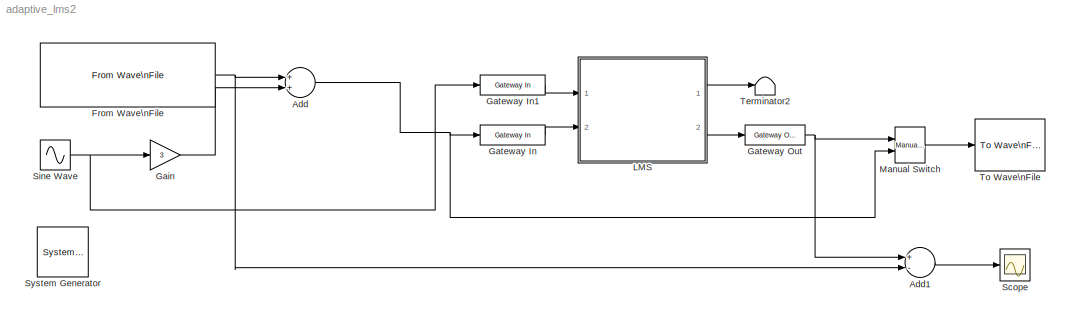
MODEL adaptive_lms2
KIND model
CONFIG StartFcn = tic
CONFIG StopFcn = toc
BLOCK [Reference]  System Generator  REF=xbsIndex_r4/ System Generator
  AttributesFormatString = System\\nGenerator
  FunctionWithSeparateData = off
  Ports = []
  RTWMemSecDataConstants = Inherit from model
  RTWMemSecDataInternal = Inherit from model
  RTWMemSecDataParameters = Inherit from model
  RTWMemSecFuncExecute = Inherit from model
  RTWMemSecFuncInitTerm = Inherit from model
  ShowPortLabels = FromPortIcon
  SourceBlock = xbsIndex_r4/ System Generator
  SourceType = Xilinx System Generator Block
  SystemSampleTime = -1
  Tag = genX
  UserData = DataTag0
  UserDataPersistent = on
  block_type = sysgen
  block_version = 8.2.01
  clock_wrapper = Clock Enables
  core_generation = According to Block Masks
  dbl_ovrd = According to Block Masks
  dcm_input_clock_period = 100
  deprecated_control = off
  directory = ./netlist
  eval_field = 0
  has_advanced_control = 0
  incr_netlist = off
  infoedit = System Generator
  package = ff896
  part = xc2vp30
  run_coregen = off
  sg_blockgui_xml = <!--  *  <copyright redacted>\n <icon width=\"51\" bg_color=\"beige\" height=\"50\" capti...<+2851ch>
  sg_icon_stat = 51,50,-1,-1,red,beige,0,07734
  sg_mask_display = fprintf('','COMMENT: begin icon graphics');\npatch([0 51 51 0 ],[0 0 50 50 ],[0.93 0.92 0.86]);\npatch([12 4 16 4 12 25 29 33 47 36 25 17 29 17 25 36 47 33 29 25 12 ],[5 13 25 37 45 45 41 45 45 34 45 37 25 13 5 16 5 5 9 5 5 ],[0.6 0.2 0.25]);\nplot([0 0 51 51 0 ],[0 50 50 0 0 ]);\nfprintf('','COMMENT: end icon graphics');\nfprintf('','COMMENT: begin icon text');\nfprintf('','COMMENT: end icon text...<+5ch>
  sggui_pos = -1,-1,-1,-1
  simulink_period = 1/48000
  speed = -7
  synthesis_tool = XST
  sysclk_period = 10
  testbench = off
  trim_vbits = Everywhere in SubSystem
  xilinxfamily = Virtex2P
BLOCK [Sum] Add
  CollapseMode = All dimensions
  InputSameDT = off
  OutDataTypeMode = Inherit via internal rule
  OutScaling = 2^-10
  Ports = [2, 1]
  SaturateOnIntegerOverflow = off
BLOCK [Sum] Add1
  CollapseMode = All dimensions
  InputSameDT = off
  Inputs = +-
  OutDataTypeMode = Inherit via internal rule
  OutScaling = 2^-10
  Ports = [2, 1]
  SaturateOnIntegerOverflow = off
BLOCK [Reference] From Wave\nFile  REF=dspwin32/From Wave\nFile
  FileName = Yabu_sample_48_mono
  MinBufSize = 1
  Ports = [0, 1]
  SamplesPerFrame = 1
  SourceBlock = dspwin32/From Wave\nFile
  SourceType = From Wave File
  bLoop = off
  dType = double
  firstSampleOutput = off
  lastSampleOutput = off
  restartMode = immediately after last sample
  timesToPlay = 1
BLOCK [Gain] Gain
  Gain = 3
  OutDataTypeMode = Inherit via internal rule
  ParameterDataTypeMode = Inherit via internal rule
  SaturateOnIntegerOverflow = off
BLOCK [Reference] Gateway In  REF=xbsIndex_r4/Gateway In
  LOCs = {}
  Ports = [1, 1]
  SourceBlock = xbsIndex_r4/Gateway In
  SourceType = Xilinx Gateway In Block
  arith_type = Signed  (2's comp)
  bin_pt = 13
  block_type = gatewayin
  block_version = 8.2.01
  dbl_ovrd = off
  has_advanced_control = 0
  infoedit = Gateway in block.  Converts inputs of type Simulink integer, double and fixed point to  Xilinx fixed point type.<P><P>Hardware notes:  In hardware these blocks become top level input ports.
  locs_specified = off
  n_bits = 16
  overflow = Wrap
  period = 1/48000
  quantization = Truncate
  sg_icon_stat = 65,20,1,1,white,yellow,0,bc55d28f,right
  sg_mask_display = fprintf('','COMMENT: begin icon graphics');\npatch([0 65 65 0 ],[0 0 20 20 ],[0.95 0.93 0.65]);\npatch([27 24 29 24 27 32 33 34 40 36 32 29 34 29 32 36 40 34 33 32 27 ],[2 5 10 15 18 18 17 18 18 14 18 15 10 5 2 6 2 2 3 2 2 ],[0.98 0.96 0.92]);\nplot([0 65 65 0 0 ],[0 0 20 20 0 ]);\nfprintf('','COMMENT: end icon graphics');\nfprintf('','COMMENT: begin icon text');\ncolor('black');port_label('input'...<+131ch>
  sggui_pos = 20,20,356,432
  timing_constraint = None
  xl_area = [0,0,0,0,0,0,0]
  xl_use_area = off
BLOCK [Reference] Gateway In1  REF=xbsIndex_r4/Gateway In
  LOCs = {}
  Ports = [1, 1]
  SourceBlock = xbsIndex_r4/Gateway In
  SourceType = Xilinx Gateway In Block
  arith_type = Signed  (2's comp)
  bin_pt = 13
  block_type = gatewayin
  block_version = 8.2.01
  dbl_ovrd = off
  has_advanced_control = 0
  infoedit = Gateway in block.  Converts inputs of type Simulink integer, double and fixed point to  Xilinx fixed point type.<P><P>Hardware notes:  In hardware these blocks become top level input ports.
  locs_specified = off
  n_bits = 16
  overflow = Wrap
  period = 1/48000
  quantization = Truncate
  sg_icon_stat = 65,20,1,1,white,yellow,0,bc55d28f,right
  sg_mask_display = fprintf('','COMMENT: begin icon graphics');\npatch([0 65 65 0 ],[0 0 20 20 ],[0.95 0.93 0.65]);\npatch([27 24 29 24 27 32 33 34 40 36 32 29 34 29 32 36 40 34 33 32 27 ],[2 5 10 15 18 18 17 18 18 14 18 15 10 5 2 6 2 2 3 2 2 ],[0.98 0.96 0.92]);\nplot([0 65 65 0 0 ],[0 0 20 20 0 ]);\nfprintf('','COMMENT: end icon graphics');\nfprintf('','COMMENT: begin icon text');\ncolor('black');port_label('input'...<+131ch>
  sggui_pos = 20,20,356,432
  timing_constraint = None
  xl_area = [0,0,0,0,0,0,0]
  xl_use_area = off
BLOCK [Reference] Gateway Out  REF=xbsIndex_r4/Gateway Out
  LOCs = {}
  Ports = [1, 1]
  SourceBlock = xbsIndex_r4/Gateway Out
  SourceType = Xilinx Gateway Out Block
  block_type = gatewayout
  block_version = 8.2.01
  has_advanced_control = 0
  hdl_port = on
  infoedit = Gateway out block.  Converts Xilinx fixed point inputs into ouputs of type Simulink integer, double, or fixed point.<P><P>Hardware notes:  In hardware these blocks become top level output ports or are discarded, depending on how they are configured.
  locs_specified = off
  sg_icon_stat = 60,20,1,1,white,yellow,0,38220381,right
  sg_mask_display = fprintf('','COMMENT: begin icon graphics');\npatch([0 60 60 0 ],[0 0 20 20 ],[0.95 0.93 0.65]);\npatch([24 21 26 21 24 29 30 31 37 33 29 26 31 26 29 33 37 31 30 29 24 ],[2 5 10 15 18 18 17 18 18 14 18 15 10 5 2 6 2 2 3 2 2 ],[0.98 0.96 0.92]);\nplot([0 60 60 0 0 ],[0 0 20 20 0 ]);\nfprintf('','COMMENT: end icon graphics');\nfprintf('','COMMENT: begin icon text');\ncolor('black');port_label('input'...<+132ch>
  sggui_pos = -1,-1,-1,-1
  timing_constraint = None
  xl_area = [0,0,0,0,0,0,0]
  xl_use_area = off
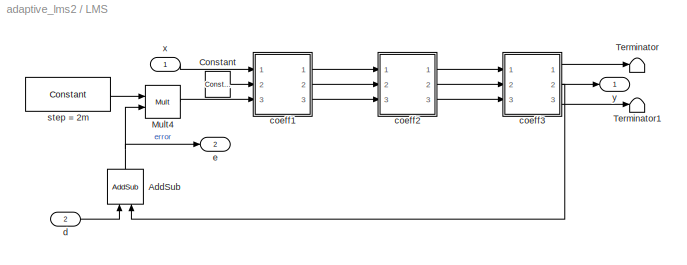
BLOCK [SubSystem] LMS
  CopyFcn = set_param(gcb, 'MaskSelfModifiable', 'on', 'LinkStatus', 'none');
  FunctionWithSeparateData = off
  MaskCallbackString = ||||||||||
  MaskDescription = Adaptive filter using LMS update algorithm
  MaskDisplay = patch([0 iWidth iWidth 0],[0 0 iHeight iHeight] , bg);\npatch(logoX,logoY , fg);\nplot([0 0 iWidth iWidth 0], [0 iHeight iHeight 0 0]);\nport_label('input',1,'x');\nport_label('input',2,'d');\nport_label('output',1,'y');\nport_label('output',2,'e');\ndisp(lms_str)\n\n\n
  MaskEnableString = on,on,on,on,on,on,on,on,on,on,on
  MaskHelp = This block uses the LMS algorithm to update the filter weights of an FIR filter.\n\nThe wordlengths of the internal operators are computed according to the following:\n\nFIR multiplier output width = Input signal width + Coefficient width\nFIR multiplier fractional output width = Input signal fractional width + Coefficient fractional width\n\nFIR adder chain output width = FIR multiplier output wi...<+318ch>
  MaskHideContents = off
  MaskIconFrame = off
  MaskIconOpaque = on
  MaskIconRotate = none
  MaskIconUnits = autoscale
  MaskInitialization = sav_gcb=gcb;\n[bg,fg] = xlcmap('XBlock',0);\niPos = get_param(sav_gcb,'Position');\niWidth=iPos(3)-iPos(1); iHeight=iPos(4)-iPos(2);\niCx=iWidth/2;\niCy=iHeight/2;\n[logoX, logoY] = xlogo(iPos);\n\n% Make sure the entered values for coeffs are positive integers\nncoeffs = round(sum(abs(coeffs)));\n\n%set lms_str and use this variable in icon tab to display string in middle of block icon\nlms_str =...<+5006ch>
  MaskPromptString = Number of bits in input|Number of fractional bits in input|Number of coefficients|Number of bits in coefficients|Number of fractional bits in coefficients|Step size|Step size number of bits|Step size number of fractional bits|Number of bits in error signal|Number of fractional bits in error signal|previous number of coefficients
  MaskSelfModifiable = on
  MaskStyleString = edit,edit,edit,edit,edit,edit,edit,edit,edit,edit,edit
  MaskTabNameString = ,,,,,,,,,,
  MaskToolTipString = on,on,on,on,on,on,on,on,on,on,on
  MaskTunableValueString = on,on,on,on,on,on,on,on,on,on,on
  MaskType = LMS Filter
  MaskValueString = 16|13|3|20|17|0.005|14|12|16|14|3
  MaskVarAliasString = ,,,,,,,,,,
  MaskVariables = input_bits=@1;input_f_bits=@2;coeffs=@3;coeff_n_bits=@4;coeff_f_bits=@5;step_size=@6;step_size_n_bits=@7;step_size_f_bits=@8;error_n_bits=@9;error_f_bits=@10;prev_coeffs=@11;
  MaskVisibilityString = on,on,on,on,on,on,on,on,on,on,off
  MinAlgLoopOccurrences = off
  Ports = [2, 2]
  RTWSystemCode = Auto
BLOCK [Reference] LMS/AddSub  REF=xbsIndex_r4/AddSub
  Ports = [2, 1]
  SourceBlock = xbsIndex_r4/AddSub
  SourceType = Xilinx Adder/Subtractor Block
  arith_type = Signed  (2's comp)
  bin_pt = error_f_bits
  block_type = addsub
  block_version = VER_STRING_GOES_HERE
  dbl_ovrd = off
  en = off
  has_advanced_control = 0
  latency = 0
  mode = Subtraction
  n_bits = error_n_bits
  overflow = Saturate
  pipelined = off
  precision = User Defined
  quantization = Truncate
  sg_icon_stat = 36,35,1,1,white,blue,0,46b4c804,right
  sg_mask_display = fprintf('','COMMENT: begin icon graphics');\npatch([0 60 60 0 ],[0 0 58 58 ],[0.77 0.82 0.91]);\npatch([15 5 19 5 15 30 34 38 54 41 29 20 34 20 29 41 54 38 34 30 15 ],[6 16 30 44 54 54 50 54 54 41 53 44 30 16 7 19 6 6 10 6 6 ],[0.98 0.96 0.92]);\nplot([0 60 60 0 0 ],[0 0 58 58 0 ]);\nfprintf('','COMMENT: end icon graphics');\nfprintf('','COMMENT: begin icon text');\ncolor('black');port_label('inpu...<+163ch>  <repeated x7 — deduplicated; at blocks: AddSub, AddSub1>
  sggui_pos = 302,424,356,350
  use_behavioral_HDL = on
  use_carryin = off
  use_carryout = off
  use_rpm = on
  xl_area = [0, 0, 0, 0, 0, 0, 0]
  xl_use_area = off
BLOCK [Reference] LMS/Constant  REF=xbsIndex_r4/Constant
  Ports = [0, 1]
  SourceBlock = xbsIndex_r4/Constant
  SourceType = Xilinx Constant Block Block
  arith_type = Signed (2's comp)
  bin_pt = 0
  block_type = constant
  block_version = 8.2.01
  carry = CIN
  const = 0
  dbl_ovrd = off
  dsp48_infoedit = The use of this block for DSP48 instructions is deprecated.  Please use the Opmode block.
  equ = P=C
  explicit_period = off
  has_advanced_control = 0
  inp1 = P
  inp2 = PCIN>>17
  n_bits = 1
  opr = +
  opselect = C
  period = 1
  sg_icon_stat = 25,26,1,1,white,blue,0,72d575a1,right
  sg_mask_display = fprintf('','COMMENT: begin icon graphics');\npatch([0 55 55 0 ],[0 0 26 26 ],[0.77 0.82 0.91]);\npatch([20 16 22 16 20 27 29 31 38 32 26 22 28 22 26 32 38 31 29 27 20 ],[3 7 13 19 23 23 21 23 23 17 23 19 13 7 3 9 3 3 5 3 3 ],[0.98 0.96 0.92]);\nplot([0 55 55 0 0 ],[0 0 26 26 0 ]);\nfprintf('','COMMENT: end icon graphics');\nfprintf('','COMMENT: begin icon text');\ncolor('black');port_label('output...<+50ch>
  sggui_pos = -1,-1,-1,-1
BLOCK [Reference] LMS/Mult4  REF=xbsIndex_r4/Mult
  Ports = [2, 1]
  SourceBlock = xbsIndex_r4/Mult
  SourceType = Xilinx Multiplier Block
  arith_type = Signed  (2's comp)
  bin_pt = error_f_bits
  block_type = mult
  block_version = VER_STRING_GOES_HERE
  dbl_ovrd = off
  en = off
  has_advanced_control = 0
  infoedit = Hardware notes: To use the internal pipeline stage of the dedicated multiplier you must select 'Pipeline for maximum performance'.
  latency = 0
  n_bits = error_n_bits
  opt = Speed
  optimum_pipeline = off
  overflow = Wrap
  pipeline = off
  placement_style = Rectangular shape
  precision = User Defined
  quantization = Round  (unbiased: +/- Inf)
  sg_icon_stat = 35,33,1,1,white,blue,0,dd5fccf4,right
  sg_mask_display = fprintf('','COMMENT: begin icon graphics ');\npatch([0 35 35 0 ],[0 0 33 33 ],[0.77 0.82 0.91]);\npatch([8 3 11 3 8 17 19 21 30 23 16 11 19 11 16 23 30 21 19 17 8 ],[4 9 17 25 30 30 28 30 30 23 30 25 17 9 4 11 4 4 6 4 4 ],[0.98 0.96 0.92]);\nplot([0 0 35 35 0 ],[0 33 33 0 0 ]);\nfprintf('','COMMENT: end icon graphics');\n\nfprintf('','COMMENT: begin icon text ');\ncolor('black');port_label('input'...<+210ch>
  sggui_pos = 600,266,356,460
  use_behavioral_HDL = off
  use_embedded = on
  use_rpm = on
  xl_area = [0, 0, 0, 0, 0, 0, 0]
  xl_use_area = off
BLOCK [Terminator] LMS/Terminator
BLOCK [Terminator] LMS/Terminator1
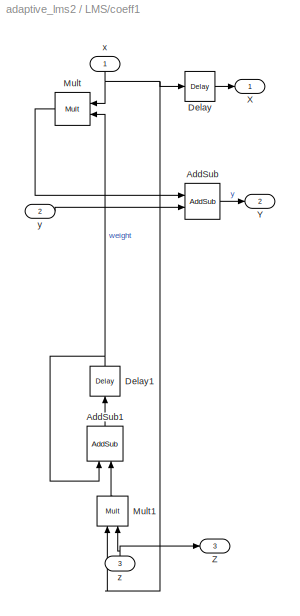
BLOCK [SubSystem] LMS/coeff1
  FunctionWithSeparateData = off
  MaskCallbackString = |||||||||
  MaskDisplay = patch([0 iWidth iWidth 0],[0 0 iHeight iHeight] , bg);\npatch(logoX,logoY , fg);\nport_label('input',1,'x');\nport_label('input',2,'y');\nport_label('input',3,'z');\nport_label('output',1,'X');\nport_label('output',2,'Y');\nport_label('output',3,'Z');\nplot([0 0 iWidth iWidth 0], [0 iHeight iHeight 0 0]);\n  <repeated x3 — deduplicated; at blocks: coeff1, coeff2, coeff3>
  MaskEnableString = on,on,on,on,on,on,on,on,on,on
  MaskHideContents = off
  MaskIconFrame = off
  MaskIconOpaque = on
  MaskIconRotate = none
  MaskIconUnits = autoscale
  MaskInitialization = [bg,fg] = xlcmap('XBlock',0);\niPos = get_param(gcb,'Position');\niWidth=iPos(3)-iPos(1); iHeight=iPos(4)-iPos(2);\niCx=iWidth/2;\niCy=iHeight/2;\n[logoX, logoY] = xlogo(iPos);\n\nset_param(gcb, 'LinkStatus', 'none');\n  <repeated x3 — deduplicated; at blocks: coeff1, coeff2, coeff3>
  MaskPromptString = Input number of bits|Input number of fractional bits|Number of bits in coefficients|Number of fractional bits in coefficients|Output width of FIR multipliers|Fractional width of FIR multipliers|Output width of FIR adder|Fractional width of FIR adder|Number of bits in error signal|Number of fractional bits in error signal  <repeated x3 — deduplicated; at blocks: coeff1, coeff2, coeff3>
  MaskStyleString = edit,edit,edit,edit,edit,edit,edit,edit,edit,edit
  MaskTabNameString = ,,,,,,,,,
  MaskToolTipString = on,on,on,on,on,on,on,on,on,on
  MaskTunableValueString = on,on,on,on,on,on,on,on,on,on
  MaskType = Update Cell
  MaskValueString = input_bits|input_f_bits|coeff_n_bits|coeff_f_bits|input_bits + coeff_n_bits|input_f_bits + coeff_f_bits|input_bits + coeff_n_bits|input_f_bits + coeff_f_bits|error_n_bits|error_f_bits
  MaskVarAliasString = ,,,,,,,,,
  MaskVariables = input_bits=@1;input_f_bits=@2;coeff_n_bits=@3;coeff_f_bits=@4;mult_n_bits=@5;mult_f_bits=@6;add_n_bits=@7;add_f_bits=@8;error_n_bits=@9;error_f_bits=@10;
  MaskVisibilityString = off,off,off,off,on,on,on,on,off,off
  MinAlgLoopOccurrences = off
  Ports = [3, 3]
  RTWSystemCode = Auto
BLOCK [Reference] LMS/coeff1/AddSub  REF=xbsIndex_r4/AddSub
  Ports = [2, 1]
  SourceBlock = xbsIndex_r4/AddSub
  SourceType = Xilinx Adder/Subtractor Block
  arith_type = Signed  (2's comp)
  bin_pt = add_f_bits
  block_type = addsub
  block_version = VER_STRING_GOES_HERE
  dbl_ovrd = off
  en = off
  has_advanced_control = 0
  latency = 0
  mode = Addition
  n_bits = add_n_bits
  overflow = Wrap
  pipelined = off
  precision = User Defined
  quantization = Truncate
  sg_icon_stat = 35,36,1,1,white,blue,0,36a47907,right
  sggui_pos = -1,-1,-1,-1
  use_behavioral_HDL = on
  use_carryin = off
  use_carryout = off
  use_rpm = on
  xl_area = [0, 0, 0, 0, 0, 0, 0]
  xl_use_area = off
BLOCK [Reference] LMS/coeff1/AddSub1  REF=xbsIndex_r4/AddSub
  Ports = [2, 1]
  SourceBlock = xbsIndex_r4/AddSub
  SourceType = Xilinx Adder/Subtractor Block
  arith_type = Signed  (2's comp)
  bin_pt = coeff_f_bits
  block_type = addsub
  block_version = VER_STRING_GOES_HERE
  dbl_ovrd = off
  en = off
  has_advanced_control = 0
  latency = 0
  mode = Addition
  n_bits = coeff_n_bits
  overflow = Saturate
  pipelined = off
  precision = User Defined
  quantization = Truncate
  sg_icon_stat = 36,35,1,1,white,blue,0,36a47907,right
  sggui_pos = -1,-1,-1,-1
  use_behavioral_HDL = on
  use_carryin = off
  use_carryout = off
  use_rpm = on
  xl_area = [0, 0, 0, 0, 0, 0, 0]
  xl_use_area = off
BLOCK [Reference] LMS/coeff1/Delay  REF=xbsIndex_r4/Delay
  Ports = [1, 1]
  SourceBlock = xbsIndex_r4/Delay
  SourceType = Xilinx Delay Block
  block_type = delay
  block_version = VER_STRING_GOES_HERE
  dbl_ovrd = off
  en = off
  has_advanced_control = 0
  infoedit = Hardware notes: A delay line is a chain, each link of which is an SRL16 followed by a flip-flop. If register retiming is enabled, the delay line is a chain of flip-flops.
  latency = 1
  reg_retiming = on
  sg_icon_stat = 30,30,1,1,white,blue,0,fc531c0e,right
  sg_mask_display = fprintf('','COMMENT: begin icon graphics ');\npatch([0 30 30 0 ],[0 0 30 30 ],[0.77 0.82 0.91]);\npatch([7 2 9 2 7 15 17 19 27 20 14 9 15 9 14 20 27 19 17 15 7 ],[3 8 15 22 27 27 25 27 27 20 26 21 15 9 4 10 3 3 5 3 3 ],[0.98 0.96 0.92]);\nplot([0 0 30 30 0 ],[0 30 30 0 0 ]);\nfprintf('','COMMENT: end icon graphics');\n\nfprintf('','COMMENT: begin icon text ');\ncolor('black');disp('z^{-1}','texmod...<+50ch>  <repeated x6 — deduplicated; at blocks: Delay, Delay1>
  sggui_pos = 20,20,356,256
  xl_area = [0, 0, 0, 0, 0, 0, 0]
  xl_use_area = off
BLOCK [Reference] LMS/coeff1/Delay1  REF=xbsIndex_r4/Delay
  Ports = [1, 1]
  SourceBlock = xbsIndex_r4/Delay
  SourceType = Xilinx Delay Block
  block_type = delay
  block_version = VER_STRING_GOES_HERE
  dbl_ovrd = off
  en = off
  has_advanced_control = 0
  infoedit = Hardware notes: A delay line is a chain, each link of which is an SRL16 followed by a flip-flop. If register retiming is enabled, the delay line is a chain of flip-flops.
  latency = 1
  reg_retiming = on
  sg_icon_stat = 30,30,1,1,white,blue,0,fc531c0e,right
  sggui_pos = 20,20,356,256
  xl_area = [0, 0, 0, 0, 0, 0, 0]
  xl_use_area = off
BLOCK [Reference] LMS/coeff1/Mult  REF=xbsIndex_r4/Mult
  Ports = [2, 1]
  SourceBlock = xbsIndex_r4/Mult
  SourceType = Xilinx Multiplier Block
  arith_type = Signed  (2's comp)
  bin_pt = mult_f_bits
  block_type = mult
  block_version = VER_STRING_GOES_HERE
  dbl_ovrd = off
  en = off
  has_advanced_control = 0
  infoedit = Hardware notes: To use the internal pipeline stage of the dedicated multiplier you must select 'Pipeline for maximum performance'.
  latency = 0
  n_bits = mult_n_bits
  opt = Speed
  optimum_pipeline = off
  overflow = Wrap
  pipeline = off
  placement_style = Rectangular shape
  precision = User Defined
  quantization = Truncate
  sg_icon_stat = 35,33,1,1,white,blue,0,dd5fccf4,right
  sg_mask_display = fprintf('','COMMENT: begin icon graphics');\npatch([0 55 55 0 ],[0 0 55 55 ],[0.77 0.82 0.91]);\npatch([13 4 17 4 13 28 32 36 52 40 28 19 32 19 28 40 52 36 32 28 13 ],[6 15 28 41 50 50 46 50 50 38 50 41 28 15 6 18 6 6 10 6 6 ],[0.98 0.96 0.92]);\nplot([0 0 55 55 0 ],[0 55 55 0 0 ]);\nfprintf('','COMMENT: end icon graphics');\nfprintf('','COMMENT: begin icon text');\ncolor('black');port_label('inpu...<+212ch>  <repeated x6 — deduplicated; at blocks: Mult, Mult1>
  sggui_pos = 20,20,356,460
  use_behavioral_HDL = off
  use_embedded = on
  use_rpm = on
  xl_area = [0, 0, 0, 0, 0, 0, 0]
  xl_use_area = off
BLOCK [Reference] LMS/coeff1/Mult1  REF=xbsIndex_r4/Mult
  Ports = [2, 1]
  SourceBlock = xbsIndex_r4/Mult
  SourceType = Xilinx Multiplier Block
  arith_type = Signed  (2's comp)
  bin_pt = error_f_bits + input_f_bits
  block_type = mult
  block_version = VER_STRING_GOES_HERE
  dbl_ovrd = off
  en = off
  has_advanced_control = 0
  infoedit = Hardware notes: To use the internal pipeline stage of the dedicated multiplier you must select 'Pipeline for maximum performance'.
  latency = 0
  n_bits = error_n_bits + input_bits
  opt = Speed
  optimum_pipeline = off
  overflow = Wrap
  pipeline = off
  placement_style = Rectangular shape
  precision = User Defined
  quantization = Truncate
  sg_icon_stat = 31,30,1,1,white,blue,0,dd5fccf4,right
  sggui_pos = 20,20,356,460
  use_behavioral_HDL = off
  use_embedded = on
  use_rpm = on
  xl_area = [0, 0, 0, 0, 0, 0, 0]
  xl_use_area = off
BLOCK [Outport] LMS/coeff1/X
  BusOutputAsStruct = off
  IconDisplay = Port number
BLOCK [Outport] LMS/coeff1/Y
  BusOutputAsStruct = off
  IconDisplay = Port number
  Port = 2
BLOCK [Outport] LMS/coeff1/Z
  BusOutputAsStruct = off
  IconDisplay = Port number
  Port = 3
BLOCK [Inport] LMS/coeff1/x
  IconDisplay = Port number
BLOCK [Inport] LMS/coeff1/y
  IconDisplay = Port number
  Port = 2
BLOCK [Inport] LMS/coeff1/z
  IconDisplay = Port number
  Port = 3
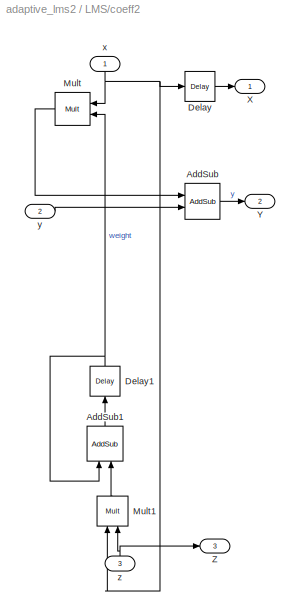
BLOCK [SubSystem] LMS/coeff2
  FunctionWithSeparateData = off
  MaskCallbackString = |||||||||
  MaskEnableString = on,on,on,on,on,on,on,on,on,on
  MaskHideContents = off
  MaskIconFrame = off
  MaskIconOpaque = on
  MaskIconRotate = none
  MaskIconUnits = autoscale
  MaskStyleString = edit,edit,edit,edit,edit,edit,edit,edit,edit,edit
  MaskTabNameString = ,,,,,,,,,
  MaskToolTipString = on,on,on,on,on,on,on,on,on,on
  MaskTunableValueString = on,on,on,on,on,on,on,on,on,on
  MaskType = Update Cell
  MaskValueString = input_bits|input_f_bits|coeff_n_bits|coeff_f_bits|input_bits + coeff_n_bits|input_f_bits + coeff_f_bits|input_bits + coeff_n_bits + 1 + (floor(log2(1)))|input_f_bits + coeff_f_bits|error_n_bits|error_f_bits
  MaskVarAliasString = ,,,,,,,,,
  MaskVariables = input_bits=@1;input_f_bits=@2;coeff_n_bits=@3;coeff_f_bits=@4;mult_n_bits=@5;mult_f_bits=@6;add_n_bits=@7;add_f_bits=@8;error_n_bits=@9;error_f_bits=@10;
  MaskVisibilityString = off,off,off,off,on,on,on,on,off,off
  MinAlgLoopOccurrences = off
  Ports = [3, 3]
  RTWSystemCode = Auto
BLOCK [Reference] LMS/coeff2/AddSub  REF=xbsIndex_r4/AddSub
  Ports = [2, 1]
  SourceBlock = xbsIndex_r4/AddSub
  SourceType = Xilinx Adder/Subtractor Block
  arith_type = Signed  (2's comp)
  bin_pt = add_f_bits
  block_type = addsub
  block_version = VER_STRING_GOES_HERE
  dbl_ovrd = off
  en = off
  has_advanced_control = 0
  latency = 0
  mode = Addition
  n_bits = add_n_bits
  overflow = Wrap
  pipelined = off
  precision = User Defined
  quantization = Truncate
  sg_icon_stat = 35,36,1,1,white,blue,0,36a47907,right
  sggui_pos = -1,-1,-1,-1
  use_behavioral_HDL = on
  use_carryin = off
  use_carryout = off
  use_rpm = on
  xl_area = [0, 0, 0, 0, 0, 0, 0]
  xl_use_area = off
BLOCK [Reference] LMS/coeff2/AddSub1  REF=xbsIndex_r4/AddSub
  Ports = [2, 1]
  SourceBlock = xbsIndex_r4/AddSub
  SourceType = Xilinx Adder/Subtractor Block
  arith_type = Signed  (2's comp)
  bin_pt = coeff_f_bits
  block_type = addsub
  block_version = VER_STRING_GOES_HERE
  dbl_ovrd = off
  en = off
  has_advanced_control = 0
  latency = 0
  mode = Addition
  n_bits = coeff_n_bits
  overflow = Saturate
  pipelined = off
  precision = User Defined
  quantization = Truncate
  sg_icon_stat = 36,35,1,1,white,blue,0,36a47907,right
  sggui_pos = -1,-1,-1,-1
  use_behavioral_HDL = on
  use_carryin = off
  use_carryout = off
  use_rpm = on
  xl_area = [0, 0, 0, 0, 0, 0, 0]
  xl_use_area = off
BLOCK [Reference] LMS/coeff2/Delay  REF=xbsIndex_r4/Delay
  Ports = [1, 1]
  SourceBlock = xbsIndex_r4/Delay
  SourceType = Xilinx Delay Block
  block_type = delay
  block_version = VER_STRING_GOES_HERE
  dbl_ovrd = off
  en = off
  has_advanced_control = 0
  infoedit = Hardware notes: A delay line is a chain, each link of which is an SRL16 followed by a flip-flop. If register retiming is enabled, the delay line is a chain of flip-flops.
  latency = 1
  reg_retiming = on
  sg_icon_stat = 30,30,1,1,white,blue,0,fc531c0e,right
  sggui_pos = 20,20,356,256
  xl_area = [0, 0, 0, 0, 0, 0, 0]
  xl_use_area = off
BLOCK [Reference] LMS/coeff2/Delay1  REF=xbsIndex_r4/Delay
  Ports = [1, 1]
  SourceBlock = xbsIndex_r4/Delay
  SourceType = Xilinx Delay Block
  block_type = delay
  block_version = VER_STRING_GOES_HERE
  dbl_ovrd = off
  en = off
  has_advanced_control = 0
  infoedit = Hardware notes: A delay line is a chain, each link of which is an SRL16 followed by a flip-flop. If register retiming is enabled, the delay line is a chain of flip-flops.
  latency = 1
  reg_retiming = on
  sg_icon_stat = 30,30,1,1,white,blue,0,fc531c0e,right
  sggui_pos = 20,20,356,256
  xl_area = [0, 0, 0, 0, 0, 0, 0]
  xl_use_area = off
BLOCK [Reference] LMS/coeff2/Mult  REF=xbsIndex_r4/Mult
  Ports = [2, 1]
  SourceBlock = xbsIndex_r4/Mult
  SourceType = Xilinx Multiplier Block
  arith_type = Signed  (2's comp)
  bin_pt = mult_f_bits
  block_type = mult
  block_version = VER_STRING_GOES_HERE
  dbl_ovrd = off
  en = off
  has_advanced_control = 0
  infoedit = Hardware notes: To use the internal pipeline stage of the dedicated multiplier you must select 'Pipeline for maximum performance'.
  latency = 0
  n_bits = mult_n_bits
  opt = Speed
  optimum_pipeline = off
  overflow = Wrap
  pipeline = off
  placement_style = Rectangular shape
  precision = User Defined
  quantization = Truncate
  sg_icon_stat = 35,33,1,1,white,blue,0,dd5fccf4,right
  sggui_pos = 20,20,356,460
  use_behavioral_HDL = off
  use_embedded = on
  use_rpm = on
  xl_area = [0, 0, 0, 0, 0, 0, 0]
  xl_use_area = off
BLOCK [Reference] LMS/coeff2/Mult1  REF=xbsIndex_r4/Mult
  Ports = [2, 1]
  SourceBlock = xbsIndex_r4/Mult
  SourceType = Xilinx Multiplier Block
  arith_type = Signed  (2's comp)
  bin_pt = error_f_bits + input_f_bits
  block_type = mult
  block_version = VER_STRING_GOES_HERE
  dbl_ovrd = off
  en = off
  has_advanced_control = 0
  infoedit = Hardware notes: To use the internal pipeline stage of the dedicated multiplier you must select 'Pipeline for maximum performance'.
  latency = 0
  n_bits = error_n_bits + input_bits
  opt = Speed
  optimum_pipeline = off
  overflow = Wrap
  pipeline = off
  placement_style = Rectangular shape
  precision = User Defined
  quantization = Truncate
  sg_icon_stat = 31,30,1,1,white,blue,0,dd5fccf4,right
  sggui_pos = 20,20,356,460
  use_behavioral_HDL = off
  use_embedded = on
  use_rpm = on
  xl_area = [0, 0, 0, 0, 0, 0, 0]
  xl_use_area = off
BLOCK [Outport] LMS/coeff2/X
  BusOutputAsStruct = off
  IconDisplay = Port number
BLOCK [Outport] LMS/coeff2/Y
  BusOutputAsStruct = off
  IconDisplay = Port number
  Port = 2
BLOCK [Outport] LMS/coeff2/Z
  BusOutputAsStruct = off
  IconDisplay = Port number
  Port = 3
BLOCK [Inport] LMS/coeff2/x
  IconDisplay = Port number
BLOCK [Inport] LMS/coeff2/y
  IconDisplay = Port number
  Port = 2
BLOCK [Inport] LMS/coeff2/z
  IconDisplay = Port number
  Port = 3
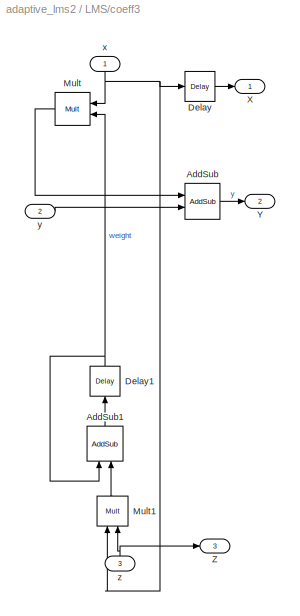
BLOCK [SubSystem] LMS/coeff3
  FunctionWithSeparateData = off
  MaskCallbackString = |||||||||
  MaskEnableString = on,on,on,on,on,on,on,on,on,on
  MaskHideContents = off
  MaskIconFrame = off
  MaskIconOpaque = on
  MaskIconRotate = none
  MaskIconUnits = autoscale
  MaskStyleString = edit,edit,edit,edit,edit,edit,edit,edit,edit,edit
  MaskTabNameString = ,,,,,,,,,
  MaskToolTipString = on,on,on,on,on,on,on,on,on,on
  MaskTunableValueString = on,on,on,on,on,on,on,on,on,on
  MaskType = Update Cell
  MaskValueString = input_bits|input_f_bits|coeff_n_bits|coeff_f_bits|input_bits + coeff_n_bits|input_f_bits + coeff_f_bits|input_bits + coeff_n_bits + 1 + (floor(log2(2)))|input_f_bits + coeff_f_bits|error_n_bits|error_f_bits
  MaskVarAliasString = ,,,,,,,,,
  MaskVariables = input_bits=@1;input_f_bits=@2;coeff_n_bits=@3;coeff_f_bits=@4;mult_n_bits=@5;mult_f_bits=@6;add_n_bits=@7;add_f_bits=@8;error_n_bits=@9;error_f_bits=@10;
  MaskVisibilityString = off,off,off,off,on,on,on,on,off,off
  MinAlgLoopOccurrences = off
  Ports = [3, 3]
  RTWSystemCode = Auto
BLOCK [Reference] LMS/coeff3/AddSub  REF=xbsIndex_r4/AddSub
  Ports = [2, 1]
  SourceBlock = xbsIndex_r4/AddSub
  SourceType = Xilinx Adder/Subtractor Block
  arith_type = Signed  (2's comp)
  bin_pt = add_f_bits
  block_type = addsub
  block_version = VER_STRING_GOES_HERE
  dbl_ovrd = off
  en = off
  has_advanced_control = 0
  latency = 0
  mode = Addition
  n_bits = add_n_bits
  overflow = Wrap
  pipelined = off
  precision = User Defined
  quantization = Truncate
  sg_icon_stat = 35,36,1,1,white,blue,0,36a47907,right
  sggui_pos = -1,-1,-1,-1
  use_behavioral_HDL = on
  use_carryin = off
  use_carryout = off
  use_rpm = on
  xl_area = [0, 0, 0, 0, 0, 0, 0]
  xl_use_area = off
BLOCK [Reference] LMS/coeff3/AddSub1  REF=xbsIndex_r4/AddSub
  Ports = [2, 1]
  SourceBlock = xbsIndex_r4/AddSub
  SourceType = Xilinx Adder/Subtractor Block
  arith_type = Signed  (2's comp)
  bin_pt = coeff_f_bits
  block_type = addsub
  block_version = VER_STRING_GOES_HERE
  dbl_ovrd = off
  en = off
  has_advanced_control = 0
  latency = 0
  mode = Addition
  n_bits = coeff_n_bits
  overflow = Saturate
  pipelined = off
  precision = User Defined
  quantization = Truncate
  sg_icon_stat = 36,35,1,1,white,blue,0,36a47907,right
  sggui_pos = -1,-1,-1,-1
  use_behavioral_HDL = on
  use_carryin = off
  use_carryout = off
  use_rpm = on
  xl_area = [0, 0, 0, 0, 0, 0, 0]
  xl_use_area = off
BLOCK [Reference] LMS/coeff3/Delay  REF=xbsIndex_r4/Delay
  Ports = [1, 1]
  SourceBlock = xbsIndex_r4/Delay
  SourceType = Xilinx Delay Block
  block_type = delay
  block_version = VER_STRING_GOES_HERE
  dbl_ovrd = off
  en = off
  has_advanced_control = 0
  infoedit = Hardware notes: A delay line is a chain, each link of which is an SRL16 followed by a flip-flop. If register retiming is enabled, the delay line is a chain of flip-flops.
  latency = 1
  reg_retiming = on
  sg_icon_stat = 30,30,1,1,white,blue,0,fc531c0e,right
  sggui_pos = 20,20,356,256
  xl_area = [0, 0, 0, 0, 0, 0, 0]
  xl_use_area = off
BLOCK [Reference] LMS/coeff3/Delay1  REF=xbsIndex_r4/Delay
  Ports = [1, 1]
  SourceBlock = xbsIndex_r4/Delay
  SourceType = Xilinx Delay Block
  block_type = delay
  block_version = VER_STRING_GOES_HERE
  dbl_ovrd = off
  en = off
  has_advanced_control = 0
  infoedit = Hardware notes: A delay line is a chain, each link of which is an SRL16 followed by a flip-flop. If register retiming is enabled, the delay line is a chain of flip-flops.
  latency = 1
  reg_retiming = on
  sg_icon_stat = 30,30,1,1,white,blue,0,fc531c0e,right
  sggui_pos = 20,20,356,256
  xl_area = [0, 0, 0, 0, 0, 0, 0]
  xl_use_area = off
BLOCK [Reference] LMS/coeff3/Mult  REF=xbsIndex_r4/Mult
  Ports = [2, 1]
  SourceBlock = xbsIndex_r4/Mult
  SourceType = Xilinx Multiplier Block
  arith_type = Signed  (2's comp)
  bin_pt = mult_f_bits
  block_type = mult
  block_version = VER_STRING_GOES_HERE
  dbl_ovrd = off
  en = off
  has_advanced_control = 0
  infoedit = Hardware notes: To use the internal pipeline stage of the dedicated multiplier you must select 'Pipeline for maximum performance'.
  latency = 0
  n_bits = mult_n_bits
  opt = Speed
  optimum_pipeline = off
  overflow = Wrap
  pipeline = off
  placement_style = Rectangular shape
  precision = User Defined
  quantization = Truncate
  sg_icon_stat = 35,33,1,1,white,blue,0,dd5fccf4,right
  sggui_pos = 20,20,356,460
  use_behavioral_HDL = off
  use_embedded = on
  use_rpm = on
  xl_area = [0, 0, 0, 0, 0, 0, 0]
  xl_use_area = off
BLOCK [Reference] LMS/coeff3/Mult1  REF=xbsIndex_r4/Mult
  Ports = [2, 1]
  SourceBlock = xbsIndex_r4/Mult
  SourceType = Xilinx Multiplier Block
  arith_type = Signed  (2's comp)
  bin_pt = error_f_bits + input_f_bits
  block_type = mult
  block_version = VER_STRING_GOES_HERE
  dbl_ovrd = off
  en = off
  has_advanced_control = 0
  infoedit = Hardware notes: To use the internal pipeline stage of the dedicated multiplier you must select 'Pipeline for maximum performance'.
  latency = 0
  n_bits = error_n_bits + input_bits
  opt = Speed
  optimum_pipeline = off
  overflow = Wrap
  pipeline = off
  placement_style = Rectangular shape
  precision = User Defined
  quantization = Truncate
  sg_icon_stat = 31,30,1,1,white,blue,0,dd5fccf4,right
  sggui_pos = 20,20,356,460
  use_behavioral_HDL = off
  use_embedded = on
  use_rpm = on
  xl_area = [0, 0, 0, 0, 0, 0, 0]
  xl_use_area = off
BLOCK [Outport] LMS/coeff3/X
  BusOutputAsStruct = off
  IconDisplay = Port number
BLOCK [Outport] LMS/coeff3/Y
  BusOutputAsStruct = off
  IconDisplay = Port number
  Port = 2
BLOCK [Outport] LMS/coeff3/Z
  BusOutputAsStruct = off
  IconDisplay = Port number
  Port = 3
BLOCK [Inport] LMS/coeff3/x
  IconDisplay = Port number
BLOCK [Inport] LMS/coeff3/y
  IconDisplay = Port number
  Port = 2
BLOCK [Inport] LMS/coeff3/z
  IconDisplay = Port number
  Port = 3
BLOCK [Inport] LMS/d
  IconDisplay = Port number
  Port = 2
BLOCK [Outport] LMS/e
  BusOutputAsStruct = off
  IconDisplay = Port number
  Port = 2
BLOCK [Reference] LMS/step = 2m  REF=xbsIndex_r4/Constant
  Ports = [0, 1]
  SourceBlock = xbsIndex_r4/Constant
  SourceType = Xilinx Constant Block Block
  arith_type = Signed (2's comp)
  bin_pt = step_size_f_bits
  block_type = constant
  block_version = VER_STRING_GOES_HERE
  carry = CIN
  const = step_size
  dbl_ovrd = off
  dsp48_infoedit = The use of this block for DSP48 instructions is deprecated.  Please use the Opmode block.
  equ = P=C
  explicit_period = off
  has_advanced_control = 0
  inp1 = P
  inp2 = PCIN>>17
  n_bits = step_size_n_bits
  opr = +
  opselect = C
  period = 1/10e6
  sg_icon_stat = 85,34,1,1,white,blue,0,696046ab,right
  sg_mask_display = fprintf('','COMMENT: begin icon graphics');\npatch([0 55 55 0 ],[0 0 26 26 ],[0.77 0.82 0.91]);\npatch([20 16 22 16 20 27 29 31 38 32 26 22 28 22 26 32 38 31 29 27 20 ],[3 7 13 19 23 23 21 23 23 17 23 19 13 7 3 9 3 3 5 3 3 ],[0.98 0.96 0.92]);\nplot([0 55 55 0 0 ],[0 0 26 26 0 ]);\nfprintf('','COMMENT: end icon graphics');\nfprintf('','COMMENT: begin icon text');\ncolor('black');port_label('output...<+61ch>
  sggui_pos = 159,191,403,414
BLOCK [Inport] LMS/x
  IconDisplay = Port number
BLOCK [Outport] LMS/y
  BusOutputAsStruct = off
  IconDisplay = Port number
BLOCK [Reference] Manual Switch  REF=simulink/Signal\nRouting/Manual Switch
  FunctionWithSeparateData = off
  Ports = [2, 1]
  RTWMemSecDataConstants = Inherit from model
  RTWMemSecDataInternal = Inherit from model
  RTWMemSecDataParameters = Inherit from model
  RTWMemSecFuncExecute = Inherit from model
  RTWMemSecFuncInitTerm = Inherit from model
  ShowPortLabels = FromPortIcon
  SourceBlock = simulink/Signal\nRouting/Manual Switch
  SourceType = Manual Switch
  SystemSampleTime = -1
  action = 0
  sw = 1
  varsize = off
BLOCK [Scope] Scope
  DataFormat = StructureWithTime
  Floating = off
  LimitDataPoints = off
  NumInputPorts = 1
  Ports = [1]
  SampleTime = 0
BLOCK [Sin] Sine Wave
  Amplitude = 0.5
  Frequency = 2*pi*1200
  Ports = [0, 1]
  SampleTime = 1/48000
  SineType = Time based
  VectorParams1D = off
BLOCK [Terminator] Terminator2
BLOCK [Reference] To Wave\nFile  REF=dspwin32/To Wave\nFile
  MinNumSamples = 256
  Ports = [1]
  SourceBlock = dspwin32/To Wave\nFile
  SourceType = To Wave File
  filename = audio
  sampleWidth = 16
LINE Add1:1 -> Scope:1
NET Add:1 -> Gateway In:1, Manual Switch:2
NET From Wave\nFile:1 -> Add1:2, Add:1
LINE Gain:1 -> Add:2
LINE Gateway In1:1 -> LMS:1
LINE Gateway In:1 -> LMS:2
NET Gateway Out:1 -> Add1:1, Manual Switch:1
NET LMS/AddSub:1 -> LMS/Mult4:2, LMS/e:1
LINE LMS/Constant:1 -> LMS/coeff1:2
LINE LMS/Mult4:1 -> LMS/coeff1:3
LINE LMS/coeff1/AddSub1:1 -> LMS/coeff1/Delay1:1
LINE LMS/coeff1/AddSub:1 -> LMS/coeff1/Y:1
NET LMS/coeff1/Delay1:1 -> LMS/coeff1/AddSub1:1, LMS/coeff1/Mult:2
LINE LMS/coeff1/Delay:1 -> LMS/coeff1/X:1
LINE LMS/coeff1/Mult1:1 -> LMS/coeff1/AddSub1:2
LINE LMS/coeff1/Mult:1 -> LMS/coeff1/AddSub:1
NET LMS/coeff1/x:1 -> LMS/coeff1/Delay:1, LMS/coeff1/Mult1:1, LMS/coeff1/Mult:1
LINE LMS/coeff1/y:1 -> LMS/coeff1/AddSub:2
NET LMS/coeff1/z:1 -> LMS/coeff1/Mult1:2, LMS/coeff1/Z:1
LINE LMS/coeff1:1 -> LMS/coeff2:1
LINE LMS/coeff1:2 -> LMS/coeff2:2
LINE LMS/coeff1:3 -> LMS/coeff2:3
LINE LMS/coeff2/AddSub1:1 -> LMS/coeff2/Delay1:1
LINE LMS/coeff2/AddSub:1 -> LMS/coeff2/Y:1
NET LMS/coeff2/Delay1:1 -> LMS/coeff2/AddSub1:1, LMS/coeff2/Mult:2
LINE LMS/coeff2/Delay:1 -> LMS/coeff2/X:1
LINE LMS/coeff2/Mult1:1 -> LMS/coeff2/AddSub1:2
LINE LMS/coeff2/Mult:1 -> LMS/coeff2/AddSub:1
NET LMS/coeff2/x:1 -> LMS/coeff2/Delay:1, LMS/coeff2/Mult1:1, LMS/coeff2/Mult:1
LINE LMS/coeff2/y:1 -> LMS/coeff2/AddSub:2
NET LMS/coeff2/z:1 -> LMS/coeff2/Mult1:2, LMS/coeff2/Z:1
LINE LMS/coeff2:1 -> LMS/coeff3:1
LINE LMS/coeff2:2 -> LMS/coeff3:2
LINE LMS/coeff2:3 -> LMS/coeff3:3
LINE LMS/coeff3/AddSub1:1 -> LMS/coeff3/Delay1:1
LINE LMS/coeff3/AddSub:1 -> LMS/coeff3/Y:1
NET LMS/coeff3/Delay1:1 -> LMS/coeff3/AddSub1:1, LMS/coeff3/Mult:2
LINE LMS/coeff3/Delay:1 -> LMS/coeff3/X:1
LINE LMS/coeff3/Mult1:1 -> LMS/coeff3/AddSub1:2
LINE LMS/coeff3/Mult:1 -> LMS/coeff3/AddSub:1
NET LMS/coeff3/x:1 -> LMS/coeff3/Delay:1, LMS/coeff3/Mult1:1, LMS/coeff3/Mult:1
LINE LMS/coeff3/y:1 -> LMS/coeff3/AddSub:2
NET LMS/coeff3/z:1 -> LMS/coeff3/Mult1:2, LMS/coeff3/Z:1
LINE LMS/coeff3:1 -> LMS/Terminator:1
NET LMS/coeff3:2 -> LMS/AddSub:2, LMS/y:1
LINE LMS/coeff3:3 -> LMS/Terminator1:1
LINE LMS/d:1 -> LMS/AddSub:1
LINE LMS/step = 2m:1 -> LMS/Mult4:1
LINE LMS/x:1 -> LMS/coeff1:1
LINE LMS:1 -> Terminator2:1
LINE LMS:2 -> Gateway Out:1
LINE Manual Switch:1 -> To Wave\nFile:1
NET Sine Wave:1 -> Gain:1, Gateway In1:1
note: NET lines group one-source signal fan-out (src -> all destinations, sorted); 1:1 wires keep LINE
